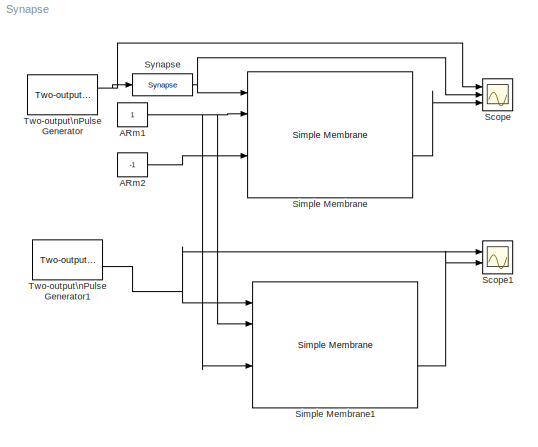
MODEL Synapse
KIND model
BLOCK [Constant] ARm1
  SID = 1
BLOCK [Constant] ARm2
  SID = 2
  Value = -1
BLOCK [Scope] Scope
  Floating = off
  NumInputPorts = 3
  Ports = [3]
  SID = 4
  ScopeSpecificationString = Simulink.scopes.TimeScopeBlockCfg('CurrentConfiguration', extmgr.ConfigurationSet(extmgr.Configuration('Core','General UI',true,'FigureColor',[1 1 1]),extmgr.Configuration('Core','Source UI',true),extmgr.Configuration('Sources','WiredSimulink',true,'DataLoggingSaveFormat','StructureWithTime','DataLoggingLimitDataPoints',true,'DataLoggingDecimation','1','DataLoggingDecimateData',true),extmgr.Config...<+3448ch>
BLOCK [Scope] Scope1
  Floating = off
  NumInputPorts = 2
  Ports = [2]
  SID = 5
  ScopeSpecificationString = Simulink.scopes.TimeScopeBlockCfg('CurrentConfiguration', extmgr.ConfigurationSet(extmgr.Configuration('Core','General UI',true),extmgr.Configuration('Core','Source UI',true),extmgr.Configuration('Sources','WiredSimulink',true,'DataLoggingVariableName','ScopeData1','DataLoggingSaveFormat','StructureWithTime','DataLoggingLimitDataPoints',true,'DataLoggingDecimation','1','DataLoggingDecimateData',tr...<+2434ch>
BLOCK [Reference] Simple Membrane  REF=NeuroModelerLibrary/Neuron Elements/Simple Membrane
  ACm = 1e-9
  ARFm = 1e8
  ARm = 1e7
  ECm = 1e-9
  ERFm = 1e8
  ERm = 1e7
  Ports = [5, 2]
  RTWMemSecDataConstants = Inherit from model
  RTWMemSecDataInternal = Inherit from model
  RTWMemSecDataParameters = Inherit from model
  RTWMemSecFuncExecute = Inherit from model
  RTWMemSecFuncInitTerm = Inherit from model
  SID = 6
  SourceBlock = NeuroModelerLibrary/Neuron Elements/Simple Membrane
BLOCK [Reference] Simple Membrane1  REF=NeuroModelerLibrary/Neuron Elements/Simple Membrane
  ACm = 1e-9
  ARFm = 1e8
  ARm = 1e7
  ECm = 1e-9
  ERFm = 1e8
  ERm = 1e7
  Ports = [5, 2]
  RTWMemSecDataConstants = Inherit from model
  RTWMemSecDataInternal = Inherit from model
  RTWMemSecDataParameters = Inherit from model
  RTWMemSecFuncExecute = Inherit from model
  RTWMemSecFuncInitTerm = Inherit from model
  SID = 7
  SourceBlock = NeuroModelerLibrary/Neuron Elements/Simple Membrane
BLOCK [Reference] Synapse  REF=NeuroModelerLibrary/Neuron Elements/Synapse
  DecompositionTC = 0.01
  Ports = [1, 1]
  RTWMemSecDataConstants = Inherit from model
  RTWMemSecDataInternal = Inherit from model
  RTWMemSecDataParameters = Inherit from model
  RTWMemSecFuncExecute = Inherit from model
  RTWMemSecFuncInitTerm = Inherit from model
  SID = 8
  SecretionTC = 0.001
  SourceBlock = NeuroModelerLibrary/Neuron Elements/Synapse
  UseKsi = on
  gamma = 1e7
  ksi = 2
BLOCK [Reference] Two-output\nPulse Generator  REF=NeuroModelerLibrary/Support/Two-output\nPulse Generator
  A = 1
  OOff1 = 0.6
  OOff2 = 1.2
  OOn1 = 0.3
  OOn2 = 1.1
  P1 = 200
  P2 = 200
  PW = 1
  Ports = [0, 2]
  RTWMemSecDataConstants = Inherit from model
  RTWMemSecDataInternal = Inherit from model
  RTWMemSecDataParameters = Inherit from model
  RTWMemSecFuncExecute = Inherit from model
  RTWMemSecFuncInitTerm = Inherit from model
  SID = 9
  ST = 0.001
  SourceBlock = NeuroModelerLibrary/Support/Two-output\nPulse Generator
BLOCK [Reference] Two-output\nPulse Generator1  REF=NeuroModelerLibrary/Support/Two-output\nPulse Generator
  A = 5/1e8
  OOff1 = 0.6
  OOff2 = 1.2
  OOn1 = 0.3
  OOn2 = 0.2
  P1 = 200
  P2 = 200
  PW = 1
  Ports = [0, 2]
  RTWMemSecDataConstants = Inherit from model
  RTWMemSecDataInternal = Inherit from model
  RTWMemSecDataParameters = Inherit from model
  RTWMemSecFuncExecute = Inherit from model
  RTWMemSecFuncInitTerm = Inherit from model
  SID = 10
  ST = 1
  SourceBlock = NeuroModelerLibrary/Support/Two-output\nPulse Generator
NET ARm1:1 -> Simple Membrane1:2, Simple Membrane1:4, Simple Membrane:2
LINE ARm2:1 -> Simple Membrane:4
LINE Simple Membrane1:2 -> Scope1:2
LINE Simple Membrane:2 -> Scope:3
NET Synapse:1 -> Scope:2, Simple Membrane:1
NET Two-output\nPulse Generator1:2 -> Scope1:1, Simple Membrane1:1
NET Two-output\nPulse Generator:1 -> Scope:1, Synapse:1
note: NET lines group one-source signal fan-out (src -> all destinations, sorted); 1:1 wires keep LINE
